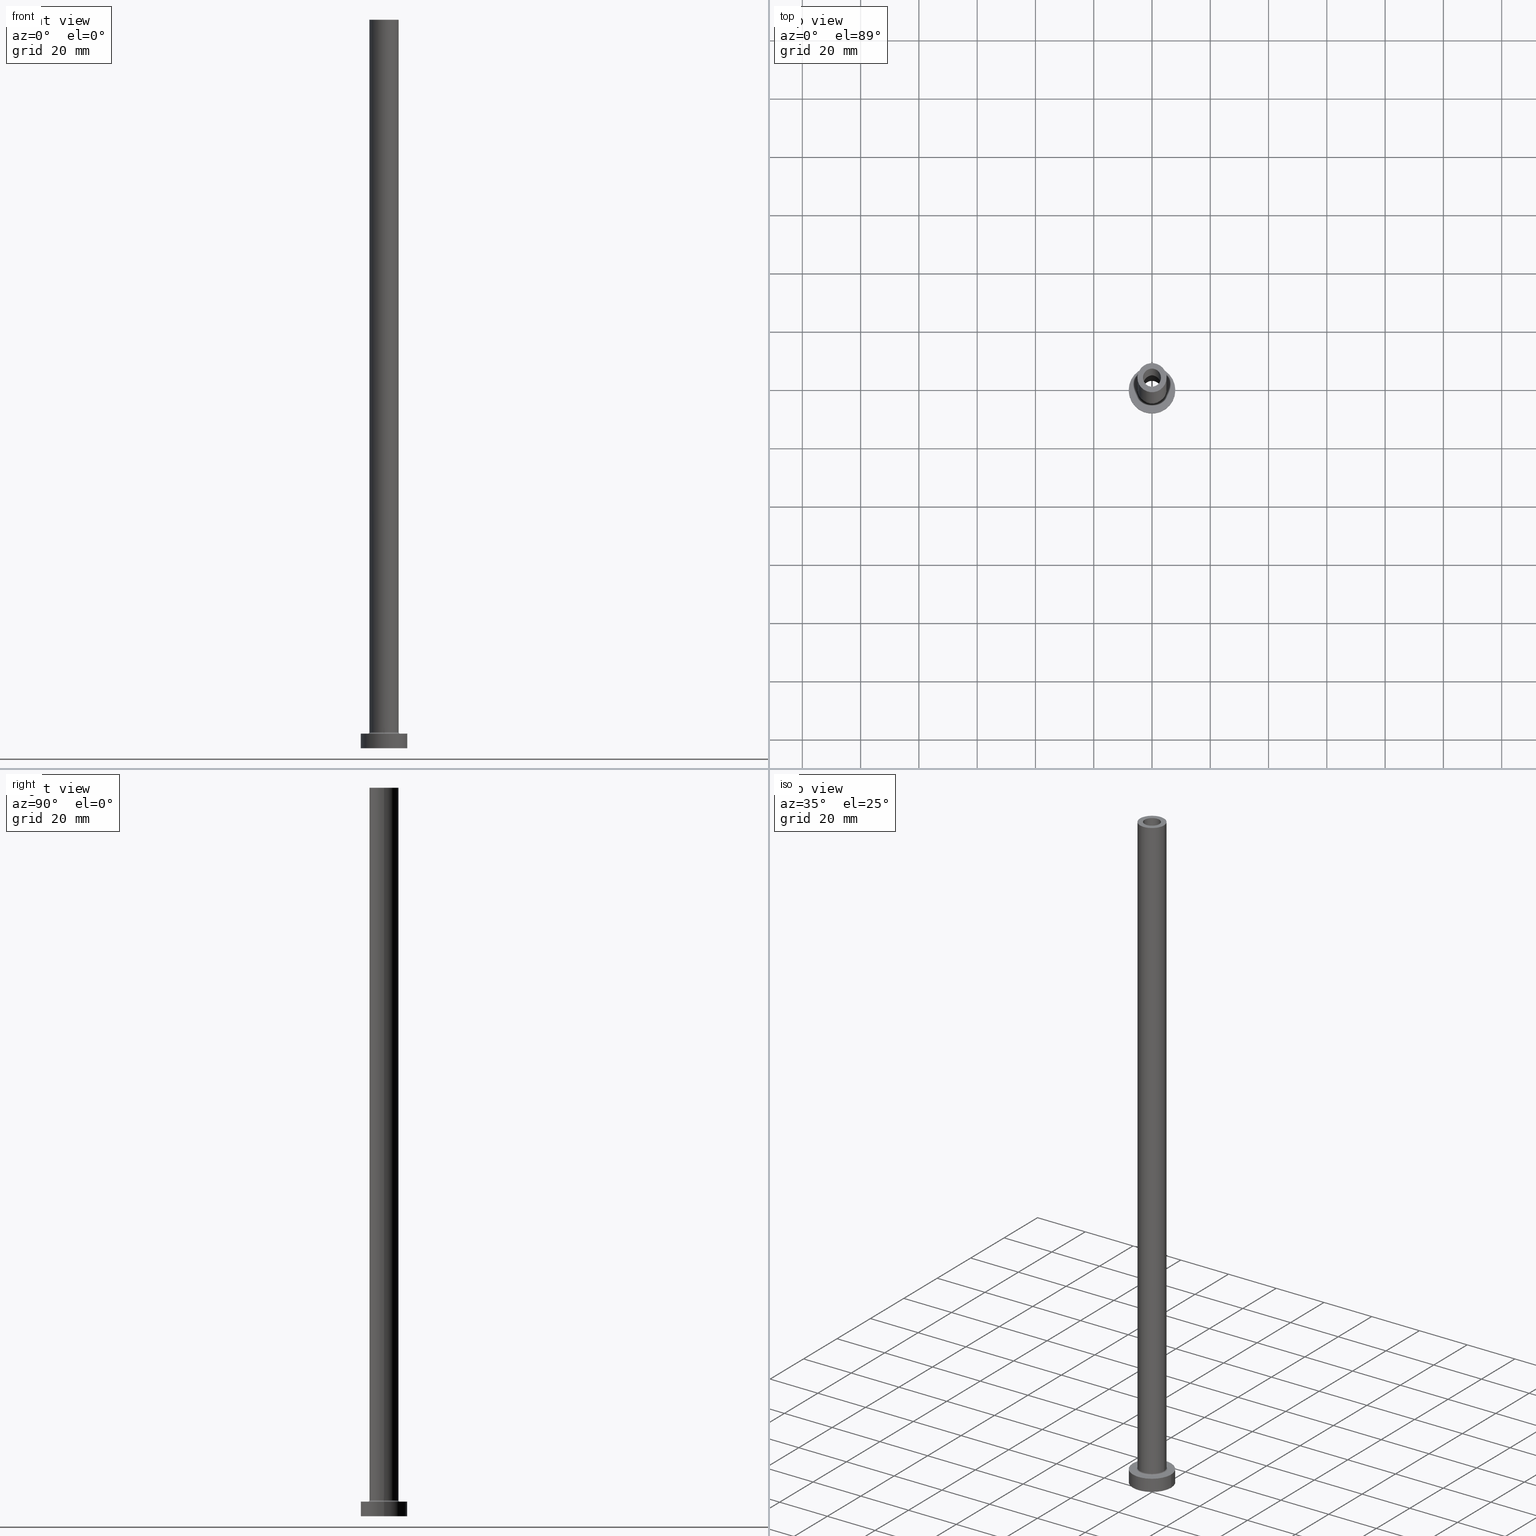
[diagram: canonical four-view strip — front | top / right | iso, engineering-drawing reading convention]
A machine part, canonical four-view strip (front | top / right | iso — engineering-drawing reading convention). The complete STEP part file that produces these views, byte-faithful:
ISO-10303-21;
HEADER;
FILE_DESCRIPTION (( 'STEP AP203' ),
    '1' );
FILE_NAME ('4656.STEP',
    '2023-02-13T14:31:28',
    ( '' ),
    ( '' ),
    'SwSTEP 2.0',
    'SolidWorks 2019',
    '' );
FILE_SCHEMA (( 'CONFIG_CONTROL_DESIGN' ));
ENDSEC;

DATA;
#1 = CIRCLE ( 'NONE', #262, 5.000000000000000000 ) ;
#2 = DIRECTION ( 'NONE',  ( 0.000000000000000000, 0.000000000000000000, 1.000000000000000000 ) ) ;
#3 = AXIS2_PLACEMENT_3D ( 'NONE', #291, #294, #296 ) ;
#4 = LOCAL_TIME ( 15, 31, 28.00000000000000000, #454 ) ;
#5 = ADVANCED_FACE ( 'NONE', ( #66 ), #364, .F. ) ;
#6 = FACE_OUTER_BOUND ( 'NONE', #111, .T. ) ;
#7 = DIRECTION ( 'NONE',  ( 1.224646799147353207E-16, 1.000000000000000000, -0.000000000000000000 ) ) ;
#8 = CARTESIAN_POINT ( 'NONE',  ( -5.000000000000000000, 0.000000000000000000, 250.0000000000000000 ) ) ;
#9 = ADVANCED_FACE ( 'NONE', ( #63 ), #103, .T. ) ;
#10 = AXIS2_PLACEMENT_3D ( 'NONE', #174, #313, #418 ) ;
#11 = LINE ( 'NONE', #120, #310 ) ;
#12 = ORIENTED_EDGE ( 'NONE', *, *, #94, .T. ) ;
#13 = VERTEX_POINT ( 'NONE', #145 ) ;
#14 = FACE_BOUND ( 'NONE', #57, .T. ) ;
#15 = ORIENTED_EDGE ( 'NONE', *, *, #179, .F. ) ;
#16 = DIRECTION ( 'NONE',  ( 1.000000000000000000, 0.000000000000000000, -0.000000000000000000 ) ) ;
#17 = PRODUCT_RELATED_PRODUCT_CATEGORY ( 'detail', '', ( #335 ) ) ;
#18 = AXIS2_PLACEMENT_3D ( 'NONE', #373, #225, #56 ) ;
#19 = ORIENTED_EDGE ( 'NONE', *, *, #295, .T. ) ;
#20 = DIRECTION ( 'NONE',  ( -0.000000000000000000, -0.000000000000000000, -1.000000000000000000 ) ) ;
#21 = EDGE_LOOP ( 'NONE', ( #309, #156 ) ) ;
#22 = CALENDAR_DATE ( 2023, 13, 2 ) ;
#23 = ORIENTED_EDGE ( 'NONE', *, *, #157, .F. ) ;
#24 = EDGE_CURVE ( 'NONE', #344, #161, #428, .T. ) ;
#25 = DIRECTION ( 'NONE',  ( 0.000000000000000000, 0.000000000000000000, 1.000000000000000000 ) ) ;
#26 = DIRECTION ( 'NONE',  ( 1.000000000000000000, 0.000000000000000000, 0.000000000000000000 ) ) ;
#27 = VECTOR ( 'NONE', #320, 1000.000000000000000 ) ;
#28 = LOCAL_TIME ( 15, 31, 28.00000000000000000, #312 ) ;
#29 = CALENDAR_DATE ( 2023, 13, 2 ) ;
#30 = DIRECTION ( 'NONE',  ( 1.000000000000000000, 0.000000000000000000, 0.000000000000000000 ) ) ;
#31 = UNCERTAINTY_MEASURE_WITH_UNIT (LENGTH_MEASURE( 1.000000000000000082E-05 ), #366, 'distance_accuracy_value', 'NONE');
#32 = EDGE_CURVE ( 'NONE', #55, #267, #106, .T. ) ;
#33 = VECTOR ( 'NONE', #243, 1000.000000000000000 ) ;
#34 = DIRECTION ( 'NONE',  ( -0.000000000000000000, -0.000000000000000000, -1.000000000000000000 ) ) ;
#35 = PERSON_AND_ORGANIZATION ( #317, #49 ) ;
#36 = CARTESIAN_POINT ( 'NONE',  ( 0.000000000000000000, 0.000000000000000000, 5.500000000000005329 ) ) ;
#37 = CIRCLE ( 'NONE', #192, 5.500000000000000000 ) ;
#38 = VERTEX_POINT ( 'NONE', #176 ) ;
#39 = LINE ( 'NONE', #182, #95 ) ;
#40 = CC_DESIGN_DATE_AND_TIME_ASSIGNMENT ( #237, #211, ( #86 ) ) ;
#41 = DIRECTION ( 'NONE',  ( 1.000000000000000000, 0.000000000000000000, 0.000000000000000000 ) ) ;
#42 = DIRECTION ( 'NONE',  ( 1.000000000000000000, 0.000000000000000000, -0.000000000000000000 ) ) ;
#43 = FACE_BOUND ( 'NONE', #84, .T. ) ;
#44 = EDGE_CURVE ( 'NONE', #267, #55, #255, .T. ) ;
#45 = VECTOR ( 'NONE', #107, 1000.000000000000000 ) ;
#46 = DIRECTION ( 'NONE',  ( -0.000000000000000000, -0.000000000000000000, -1.000000000000000000 ) ) ;
#47 = EDGE_LOOP ( 'NONE', ( #298, #306, #204, #247 ) ) ;
#48 = AXIS2_PLACEMENT_3D ( 'NONE', #112, #253, #391 ) ;
#49 = ORGANIZATION ( 'NEUR�EN�', 'NEUR�EN�', '' ) ;
#50 = CARTESIAN_POINT ( 'NONE',  ( -8.000000000000000000, 0.000000000000000000, 5.000000000000000000 ) ) ;
#51 = ORIENTED_EDGE ( 'NONE', *, *, #114, .F. ) ;
#52 = ORIENTED_EDGE ( 'NONE', *, *, #307, .T. ) ;
#53 = PRODUCT_DEFINITION ( 'NEZN�M�', '', #327, #447 ) ;
#54 = DIRECTION ( 'NONE',  ( 0.000000000000000000, 0.000000000000000000, 1.000000000000000000 ) ) ;
#55 = VERTEX_POINT ( 'NONE', #388 ) ;
#56 = DIRECTION ( 'NONE',  ( 1.000000000000000000, 0.000000000000000000, 0.000000000000000000 ) ) ;
#57 = EDGE_LOOP ( 'NONE', ( #104, #458 ) ) ;
#58 = DIRECTION ( 'NONE',  ( 0.000000000000000000, 0.000000000000000000, 1.000000000000000000 ) ) ;
#59 = ADVANCED_FACE ( 'NONE', ( #181 ), #421, .F. ) ;
#60 = EDGE_LOOP ( 'NONE', ( #429, #108, #23, #318 ) ) ;
#61 = APPROVAL_ROLE ( '' ) ;
#62 = DIRECTION ( 'NONE',  ( 1.000000000000000000, 0.000000000000000000, 0.000000000000000000 ) ) ;
#63 = FACE_OUTER_BOUND ( 'NONE', #96, .T. ) ;
#64 = AXIS2_PLACEMENT_3D ( 'NONE', #360, #359, #259 ) ;
#65 = DATE_AND_TIME ( #22, #77 ) ;
#66 = FACE_OUTER_BOUND ( 'NONE', #60, .T. ) ;
#67 = DATE_AND_TIME ( #29, #389 ) ;
#68 = AXIS2_PLACEMENT_3D ( 'NONE', #239, #34, #246 ) ;
#69 = DIRECTION ( 'NONE',  ( 0.000000000000000000, 0.000000000000000000, 1.000000000000000000 ) ) ;
#70 = ORIENTED_EDGE ( 'NONE', *, *, #451, .T. ) ;
#71 = APPROVAL_STATUS ( 'not_yet_approved' ) ;
#72 = DIRECTION ( 'NONE',  ( 0.000000000000000000, 0.000000000000000000, 1.000000000000000000 ) ) ;
#73 = LINE ( 'NONE', #430, #209 ) ;
#74 = EDGE_CURVE ( 'NONE', #13, #224, #286, .T. ) ;
#75 = DIRECTION ( 'NONE',  ( -1.000000000000000000, 0.000000000000000000, 0.000000000000000000 ) ) ;
#76 = CARTESIAN_POINT ( 'NONE',  ( 0.000000000000000000, 0.000000000000000000, 250.0000000000000000 ) ) ;
#77 = LOCAL_TIME ( 15, 31, 28.00000000000000000, #135 ) ;
#78 = EDGE_CURVE ( 'NONE', #38, #372, #293, .T. ) ;
#79 = FACE_OUTER_BOUND ( 'NONE', #118, .T. ) ;
#80 = MANIFOLD_SOLID_BREP ( 'Odebrat vysunut�m4', #392 ) ;
#81 = DIRECTION ( 'NONE',  ( -0.000000000000000000, -0.000000000000000000, -1.000000000000000000 ) ) ;
#82 = AXIS2_PLACEMENT_3D ( 'NONE', #212, #69, #26 ) ;
#83 = CARTESIAN_POINT ( 'NONE',  ( 0.000000000000000000, 0.000000000000000000, 5.000000000000000000 ) ) ;
#84 = EDGE_LOOP ( 'NONE', ( #201, #336 ) ) ;
#85 = CIRCLE ( 'NONE', #48, 3.100000000000000089 ) ;
#86 = SECURITY_CLASSIFICATION ( '', '', #105 ) ;
#87 = DIRECTION ( 'NONE',  ( 0.000000000000000000, 0.000000000000000000, -1.000000000000000000 ) ) ;
#88 = ORIENTED_EDGE ( 'NONE', *, *, #358, .F. ) ;
#89 = DIRECTION ( 'NONE',  ( 1.000000000000000000, 0.000000000000000000, 0.000000000000000000 ) ) ;
#90 = ORIENTED_EDGE ( 'NONE', *, *, #307, .F. ) ;
#91 = CIRCLE ( 'NONE', #116, 3.250000000000000444 ) ;
#92 = CARTESIAN_POINT ( 'NONE',  ( 0.000000000000000000, 0.000000000000000000, 214.1923881554251352 ) ) ;
#93 = ORIENTED_EDGE ( 'NONE', *, *, #146, .F. ) ;
#94 = EDGE_CURVE ( 'NONE', #372, #38, #1, .T. ) ;
#95 = VECTOR ( 'NONE', #324, 1000.000000000000000 ) ;
#96 = EDGE_LOOP ( 'NONE', ( #143, #15, #206, #304 ) ) ;
#97 = COORDINATED_UNIVERSAL_TIME_OFFSET ( 1, 0, .AHEAD. ) ;
#98 = CYLINDRICAL_SURFACE ( 'NONE', #68, 5.000000000000000000 ) ;
#99 = APPROVAL_DATE_TIME ( #241, #323 ) ;
#100 = DIRECTION ( 'NONE',  ( 1.000000000000000000, 0.000000000000000000, 0.000000000000000000 ) ) ;
#101 = DIRECTION ( 'NONE',  ( -1.000000000000000000, 0.000000000000000000, 0.000000000000000000 ) ) ;
#102 = ADVANCED_FACE ( 'NONE', ( #214 ), #98, .T. ) ;
#103 = CYLINDRICAL_SURFACE ( 'NONE', #456, 8.000000000000000000 ) ;
#104 = ORIENTED_EDGE ( 'NONE', *, *, #258, .F. ) ;
#105 = SECURITY_CLASSIFICATION_LEVEL ( 'unclassified' ) ;
#106 = CIRCLE ( 'NONE', #198, 5.000000000000000000 ) ;
#107 = DIRECTION ( 'NONE',  ( -0.000000000000000000, -0.000000000000000000, -1.000000000000000000 ) ) ;
#108 = ORIENTED_EDGE ( 'NONE', *, *, #274, .T. ) ;
#109 = DIRECTION ( 'NONE',  ( -0.000000000000000000, -0.000000000000000000, -1.000000000000000000 ) ) ;
#110 = CIRCLE ( 'NONE', #220, 0.5000000000000004441 ) ;
#111 = EDGE_LOOP ( 'NONE', ( #93, #130, #283, #70 ) ) ;
#112 = CARTESIAN_POINT ( 'NONE',  ( 0.000000000000000000, 0.000000000000000000, 250.0000000000000000 ) ) ;
#113 = FACE_OUTER_BOUND ( 'NONE', #125, .T. ) ;
#114 = EDGE_CURVE ( 'NONE', #339, #13, #91, .T. ) ;
#115 = DIRECTION ( 'NONE',  ( -1.000000000000000000, 1.224646799147351482E-16, 0.000000000000000000 ) ) ;
#116 = AXIS2_PLACEMENT_3D ( 'NONE', #379, #172, #100 ) ;
#117 = CARTESIAN_POINT ( 'NONE',  ( 0.000000000000000000, 0.000000000000000000, 250.0000000000000000 ) ) ;
#118 = EDGE_LOOP ( 'NONE', ( #284, #127, #405, #12 ) ) ;
#119 = DIRECTION ( 'NONE',  ( 0.000000000000000000, 0.000000000000000000, 1.000000000000000000 ) ) ;
#120 = CARTESIAN_POINT ( 'NONE',  ( 5.000000000000000000, 6.123233995736766282E-16, 250.0000000000000000 ) ) ;
#121 = CC_DESIGN_PERSON_AND_ORGANIZATION_ASSIGNMENT ( #139, #245, ( #86 ) ) ;
#122 = ORIENTED_EDGE ( 'NONE', *, *, #369, .T. ) ;
#123 = AXIS2_PLACEMENT_3D ( 'NONE', #300, #261, #89 ) ;
#124 = DIRECTION ( 'NONE',  ( 1.000000000000000000, 0.000000000000000000, -0.000000000000000000 ) ) ;
#125 = EDGE_LOOP ( 'NONE', ( #444, #51 ) ) ;
#126 =( NAMED_UNIT ( * ) PLANE_ANGLE_UNIT ( ) SI_UNIT ( $, .RADIAN. ) );
#127 = ORIENTED_EDGE ( 'NONE', *, *, #44, .F. ) ;
#128 = EDGE_CURVE ( 'NONE', #13, #339, #412, .T. ) ;
#129 = CARTESIAN_POINT ( 'NONE',  ( 0.000000000000000000, 0.000000000000000000, 0.000000000000000000 ) ) ;
#130 = ORIENTED_EDGE ( 'NONE', *, *, #114, .T. ) ;
#131 = AXIS2_PLACEMENT_3D ( 'NONE', #362, #183, #187 ) ;
#132 = DATE_TIME_ROLE ( 'creation_date' ) ;
#133 = CIRCLE ( 'NONE', #10, 5.500000000000000000 ) ;
#134 = VERTEX_POINT ( 'NONE', #136 ) ;
#135 = COORDINATED_UNIVERSAL_TIME_OFFSET ( 1, 0, .AHEAD. ) ;
#136 = CARTESIAN_POINT ( 'NONE',  ( 8.000000000000000000, 9.797174393178825657E-16, 0.000000000000000000 ) ) ;
#137 = EDGE_CURVE ( 'NONE', #425, #226, #140, .T. ) ;
#138 = ORIENTED_EDGE ( 'NONE', *, *, #74, .F. ) ;
#139 = PERSON_AND_ORGANIZATION ( #317, #49 ) ;
#140 = LINE ( 'NONE', #424, #27 ) ;
#141 = AXIS2_PLACEMENT_3D ( 'NONE', #256, #2, #42 ) ;
#142 = CC_DESIGN_APPROVAL ( #323, ( #53 ) ) ;
#143 = ORIENTED_EDGE ( 'NONE', *, *, #295, .F. ) ;
#144 = PERSON_AND_ORGANIZATION_ROLE ( 'creator' ) ;
#145 = CARTESIAN_POINT ( 'NONE',  ( -3.250000000000000444, 0.000000000000000000, 205.0000000000000284 ) ) ;
#146 = EDGE_CURVE ( 'NONE', #339, #302, #240, .T. ) ;
#147 = DIRECTION ( 'NONE',  ( 0.000000000000000000, 0.000000000000000000, 1.000000000000000000 ) ) ;
#148 = CARTESIAN_POINT ( 'NONE',  ( -5.500000000000000000, 6.735557395310442023E-16, 5.000000000000002665 ) ) ;
#149 = CIRCLE ( 'NONE', #395, 3.100000000000000089 ) ;
#150 = CARTESIAN_POINT ( 'NONE',  ( 0.000000000000000000, 0.000000000000000000, 5.000000000000000000 ) ) ;
#151 = CARTESIAN_POINT ( 'NONE',  ( 0.000000000000000000, 0.000000000000000000, 250.0000000000000000 ) ) ;
#152 = EDGE_CURVE ( 'NONE', #134, #161, #375, .T. ) ;
#153 = DIRECTION ( 'NONE',  ( -0.000000000000000000, -0.000000000000000000, -1.000000000000000000 ) ) ;
#154 = AXIS2_PLACEMENT_3D ( 'NONE', #442, #340, #124 ) ;
#155 = FACE_OUTER_BOUND ( 'NONE', #47, .T. ) ;
#156 = ORIENTED_EDGE ( 'NONE', *, *, #358, .T. ) ;
#157 = EDGE_CURVE ( 'NONE', #271, #190, #133, .T. ) ;
#158 = PLANE ( 'NONE',  #169 ) ;
#159 = EDGE_LOOP ( 'NONE', ( #374, #230 ) ) ;
#160 = DIRECTION ( 'NONE',  ( 1.000000000000000000, 0.000000000000000000, 0.000000000000000000 ) ) ;
#161 = VERTEX_POINT ( 'NONE', #455 ) ;
#162 = CIRCLE ( 'NONE', #382, 8.000000000000000000 ) ;
#163 = ADVANCED_FACE ( 'NONE', ( #6 ), #257, .F. ) ;
#164 = ORIENTED_EDGE ( 'NONE', *, *, #157, .T. ) ;
#165 = DIRECTION ( 'NONE',  ( 0.000000000000000000, -1.000000000000000000, 0.000000000000000000 ) ) ;
#166 = ORIENTED_EDGE ( 'NONE', *, *, #24, .F. ) ;
#167 = COORDINATED_UNIVERSAL_TIME_OFFSET ( 1, 0, .AHEAD. ) ;
#168 = ORIENTED_EDGE ( 'NONE', *, *, #199, .F. ) ;
#169 = AXIS2_PLACEMENT_3D ( 'NONE', #445, #119, #16 ) ;
#170 = PERSON_AND_ORGANIZATION ( #317, #49 ) ;
#171 = LOCAL_TIME ( 15, 31, 28.00000000000000000, #97 ) ;
#172 = DIRECTION ( 'NONE',  ( 0.000000000000000000, 0.000000000000000000, 1.000000000000000000 ) ) ;
#173 = ADVANCED_FACE ( 'NONE', ( #79 ), #218, .T. ) ;
#174 = CARTESIAN_POINT ( 'NONE',  ( 0.000000000000000000, 0.000000000000000000, 5.000000000000000000 ) ) ;
#175 = APPROVAL_STATUS ( 'not_yet_approved' ) ;
#176 = CARTESIAN_POINT ( 'NONE',  ( 5.000000000000000000, 6.123233995736766282E-16, 5.500000000000005329 ) ) ;
#177 = APPLICATION_PROTOCOL_DEFINITION ( 'international standard', 'config_control_design', 1994, #347 ) ;
#178 = DIRECTION ( 'NONE',  ( 0.000000000000000000, 0.000000000000000000, 1.000000000000000000 ) ) ;
#179 = EDGE_CURVE ( 'NONE', #344, #402, #162, .T. ) ;
#180 = ADVANCED_BREP_SHAPE_REPRESENTATION ( '4656', ( #80, #193 ), #242 ) ;
#181 = FACE_OUTER_BOUND ( 'NONE', #321, .T. ) ;
#182 = CARTESIAN_POINT ( 'NONE',  ( 3.100000000000000089, 3.796405077356793932E-16, 250.0000000000000000 ) ) ;
#183 = DIRECTION ( 'NONE',  ( 0.000000000000000000, 0.000000000000000000, 1.000000000000000000 ) ) ;
#184 = AXIS2_PLACEMENT_3D ( 'NONE', #311, #457, #453 ) ;
#185 = CC_DESIGN_APPROVAL ( #417, ( #86 ) ) ;
#186 = CYLINDRICAL_SURFACE ( 'NONE', #235, 3.100000000000000089 ) ;
#187 = DIRECTION ( 'NONE',  ( 1.000000000000000000, 0.000000000000000000, 0.000000000000000000 ) ) ;
#188 = AXIS2_PLACEMENT_3D ( 'NONE', #357, #384, #380 ) ;
#189 = CARTESIAN_POINT ( 'NONE',  ( -3.250000000000000444, 0.000000000000000000, 0.000000000000000000 ) ) ;
#190 = VERTEX_POINT ( 'NONE', #148 ) ;
#191 = ADVANCED_FACE ( 'NONE', ( #43, #222 ), #326, .F. ) ;
#192 = AXIS2_PLACEMENT_3D ( 'NONE', #328, #330, #393 ) ;
#193 = AXIS2_PLACEMENT_3D ( 'NONE', #354, #25, #459 ) ;
#194 = DIRECTION ( 'NONE',  ( 0.000000000000000000, 0.000000000000000000, -1.000000000000000000 ) ) ;
#195 = ORIENTED_EDGE ( 'NONE', *, *, #137, .F. ) ;
#196 = CARTESIAN_POINT ( 'NONE',  ( 3.250000000000000444, 3.980102097228898231E-16, 205.0000000000000284 ) ) ;
#197 = EDGE_LOOP ( 'NONE', ( #88, #19, #450, #166 ) ) ;
#198 = AXIS2_PLACEMENT_3D ( 'NONE', #322, #215, #62 ) ;
#199 = EDGE_CURVE ( 'NONE', #449, #226, #227, .T. ) ;
#200 = CYLINDRICAL_SURFACE ( 'NONE', #282, 3.250000000000000444 ) ;
#201 = ORIENTED_EDGE ( 'NONE', *, *, #451, .F. ) ;
#202 = CIRCLE ( 'NONE', #18, 3.250000000000000444 ) ;
#203 = CC_DESIGN_SECURITY_CLASSIFICATION ( #86, ( #327 ) ) ;
#204 = ORIENTED_EDGE ( 'NONE', *, *, #387, .T. ) ;
#205 = DIRECTION ( 'NONE',  ( 0.000000000000000000, 0.000000000000000000, 1.000000000000000000 ) ) ;
#206 = ORIENTED_EDGE ( 'NONE', *, *, #24, .T. ) ;
#207 = DIRECTION ( 'NONE',  ( -1.000000000000000000, 0.000000000000000000, 0.000000000000000000 ) ) ;
#208 = CC_DESIGN_PERSON_AND_ORGANIZATION_ASSIGNMENT ( #420, #427, ( #327 ) ) ;
#209 = VECTOR ( 'NONE', #109, 1000.000000000000000 ) ;
#210 = CARTESIAN_POINT ( 'NONE',  ( 0.000000000000000000, 0.000000000000000000, 250.0000000000000000 ) ) ;
#211 = DATE_TIME_ROLE ( 'classification_date' ) ;
#212 = CARTESIAN_POINT ( 'NONE',  ( 0.000000000000000000, 0.000000000000000000, 5.500000000000005329 ) ) ;
#213 = ADVANCED_FACE ( 'NONE', ( #292 ), #186, .F. ) ;
#214 = FACE_OUTER_BOUND ( 'NONE', #287, .T. ) ;
#215 = DIRECTION ( 'NONE',  ( 0.000000000000000000, 0.000000000000000000, 1.000000000000000000 ) ) ;
#216 = AXIS2_PLACEMENT_3D ( 'NONE', #342, #58, #160 ) ;
#217 = CARTESIAN_POINT ( 'NONE',  ( 3.100000000000000089, 3.796405077356793932E-16, 250.0000000000000000 ) ) ;
#218 = CYLINDRICAL_SURFACE ( 'NONE', #436, 5.000000000000000000 ) ;
#219 = CARTESIAN_POINT ( 'NONE',  ( 5.500000000000000000, 0.000000000000000000, 5.000000000000002665 ) ) ;
#220 = AXIS2_PLACEMENT_3D ( 'NONE', #264, #165, #194 ) ;
#221 = PLANE ( 'NONE',  #141 ) ;
#222 = FACE_OUTER_BOUND ( 'NONE', #252, .T. ) ;
#223 = ADVANCED_FACE ( 'NONE', ( #433, #113 ), #221, .F. ) ;
#224 = VERTEX_POINT ( 'NONE', #189 ) ;
#225 = DIRECTION ( 'NONE',  ( -0.000000000000000000, -0.000000000000000000, -1.000000000000000000 ) ) ;
#226 = VERTEX_POINT ( 'NONE', #363 ) ;
#227 = CIRCLE ( 'NONE', #131, 3.100000000000000089 ) ;
#228 = APPROVAL_PERSON_ORGANIZATION ( #350, #417, #345 ) ;
#229 =( NAMED_UNIT ( * ) SI_UNIT ( $, .STERADIAN. ) SOLID_ANGLE_UNIT ( ) );
#230 = ORIENTED_EDGE ( 'NONE', *, *, #199, .T. ) ;
#231 = CARTESIAN_POINT ( 'NONE',  ( 8.000000000000000000, 9.797174393178825657E-16, 5.000000000000000000 ) ) ;
#232 = ORIENTED_EDGE ( 'NONE', *, *, #337, .F. ) ;
#233 = FACE_OUTER_BOUND ( 'NONE', #236, .T. ) ;
#234 = ORIENTED_EDGE ( 'NONE', *, *, #315, .T. ) ;
#235 = AXIS2_PLACEMENT_3D ( 'NONE', #76, #396, #75 ) ;
#236 = EDGE_LOOP ( 'NONE', ( #399, #407, #441, #138 ) ) ;
#237 = DATE_AND_TIME ( #452, #4 ) ;
#238 = CC_DESIGN_DATE_AND_TIME_ASSIGNMENT ( #67, #132, ( #53 ) ) ;
#239 = CARTESIAN_POINT ( 'NONE',  ( 0.000000000000000000, 0.000000000000000000, 250.0000000000000000 ) ) ;
#240 = LINE ( 'NONE', #278, #367 ) ;
#241 = DATE_AND_TIME ( #378, #171 ) ;
#242 =( GEOMETRIC_REPRESENTATION_CONTEXT ( 3 ) GLOBAL_UNCERTAINTY_ASSIGNED_CONTEXT ( ( #31 ) ) GLOBAL_UNIT_ASSIGNED_CONTEXT ( ( #366, #126, #229 ) ) REPRESENTATION_CONTEXT ( 'NONE', 'WORKASPACE' ) );
#243 = DIRECTION ( 'NONE',  ( 0.000000000000000000, 0.000000000000000000, -1.000000000000000000 ) ) ;
#244 = EDGE_CURVE ( 'NONE', #267, #372, #437, .T. ) ;
#245 = PERSON_AND_ORGANIZATION_ROLE ( 'classification_officer' ) ;
#246 = DIRECTION ( 'NONE',  ( -1.000000000000000000, 0.000000000000000000, 0.000000000000000000 ) ) ;
#247 = ORIENTED_EDGE ( 'NONE', *, *, #254, .F. ) ;
#248 = APPROVAL_DATE_TIME ( #279, #289 ) ;
#249 = DIRECTION ( 'NONE',  ( 0.000000000000000000, 0.000000000000000000, 1.000000000000000000 ) ) ;
#250 = AXIS2_PLACEMENT_3D ( 'NONE', #365, #7, #115 ) ;
#251 = CARTESIAN_POINT ( 'NONE',  ( -5.000000000000000000, 0.000000000000000000, 250.0000000000000000 ) ) ;
#252 = EDGE_LOOP ( 'NONE', ( #232, #377 ) ) ;
#253 = DIRECTION ( 'NONE',  ( 0.000000000000000000, 0.000000000000000000, 1.000000000000000000 ) ) ;
#254 = EDGE_CURVE ( 'NONE', #190, #271, #37, .T. ) ;
#255 = CIRCLE ( 'NONE', #434, 5.000000000000000000 ) ;
#256 = CARTESIAN_POINT ( 'NONE',  ( 0.000000000000000000, 0.000000000000000000, 205.0000000000000284 ) ) ;
#257 = CYLINDRICAL_SURFACE ( 'NONE', #64, 3.250000000000000444 ) ;
#258 = EDGE_CURVE ( 'NONE', #425, #299, #149, .T. ) ;
#259 = DIRECTION ( 'NONE',  ( -1.000000000000000000, 0.000000000000000000, 0.000000000000000000 ) ) ;
#260 = ORIENTED_EDGE ( 'NONE', *, *, #244, .F. ) ;
#261 = DIRECTION ( 'NONE',  ( 0.000000000000000000, 0.000000000000000000, 1.000000000000000000 ) ) ;
#262 = AXIS2_PLACEMENT_3D ( 'NONE', #36, #72, #414 ) ;
#263 = PRODUCT_DEFINITION_SHAPE ( 'NONE', 'NONE',  #53 ) ;
#264 = CARTESIAN_POINT ( 'NONE',  ( 5.500000000000000000, 0.000000000000000000, 5.500000000000005329 ) ) ;
#265 = EDGE_LOOP ( 'NONE', ( #164, #368 ) ) ;
#266 = FACE_OUTER_BOUND ( 'NONE', #21, .T. ) ;
#267 = VERTEX_POINT ( 'NONE', #8 ) ;
#268 = PLANE ( 'NONE',  #154 ) ;
#269 = ORIENTED_EDGE ( 'NONE', *, *, #137, .T. ) ;
#270 = DIRECTION ( 'NONE',  ( -1.000000000000000000, 0.000000000000000000, 0.000000000000000000 ) ) ;
#271 = VERTEX_POINT ( 'NONE', #219 ) ;
#272 = CIRCLE ( 'NONE', #356, 8.000000000000000000 ) ;
#273 = CC_DESIGN_APPROVAL ( #289, ( #327 ) ) ;
#274 = EDGE_CURVE ( 'NONE', #372, #190, #361, .T. ) ;
#275 = MECHANICAL_CONTEXT ( 'NONE', #347, 'mechanical' ) ;
#276 = DIRECTION ( 'NONE',  ( 1.000000000000000000, 0.000000000000000000, 0.000000000000000000 ) ) ;
#277 = APPROVAL_ROLE ( '' ) ;
#278 = CARTESIAN_POINT ( 'NONE',  ( 3.250000000000000444, 3.980102097228898231E-16, 214.1923881554251352 ) ) ;
#279 = DATE_AND_TIME ( #285, #28 ) ;
#280 = ORIENTED_EDGE ( 'NONE', *, *, #343, .F. ) ;
#281 = EDGE_CURVE ( 'NONE', #302, #224, #325, .T. ) ;
#282 = AXIS2_PLACEMENT_3D ( 'NONE', #92, #87, #270 ) ;
#283 = ORIENTED_EDGE ( 'NONE', *, *, #74, .T. ) ;
#284 = ORIENTED_EDGE ( 'NONE', *, *, #369, .F. ) ;
#285 = CALENDAR_DATE ( 2023, 13, 2 ) ;
#286 = LINE ( 'NONE', #460, #33 ) ;
#287 = EDGE_LOOP ( 'NONE', ( #333, #122, #411, #260 ) ) ;
#288 = DIRECTION ( 'NONE',  ( 1.000000000000000000, 0.000000000000000000, 0.000000000000000000 ) ) ;
#289 = APPROVAL ( #71, 'NEUR�EN�' ) ;
#290 = AXIS2_PLACEMENT_3D ( 'NONE', #390, #46, #288 ) ;
#291 = CARTESIAN_POINT ( 'NONE',  ( 0.000000000000000000, 0.000000000000000000, 0.000000000000000000 ) ) ;
#292 = FACE_OUTER_BOUND ( 'NONE', #341, .T. ) ;
#293 = CIRCLE ( 'NONE', #82, 5.000000000000000000 ) ;
#294 = DIRECTION ( 'NONE',  ( 0.000000000000000000, 0.000000000000000000, 1.000000000000000000 ) ) ;
#295 = EDGE_CURVE ( 'NONE', #402, #134, #73, .T. ) ;
#296 = DIRECTION ( 'NONE',  ( 1.000000000000000000, 0.000000000000000000, -0.000000000000000000 ) ) ;
#297 = FACE_BOUND ( 'NONE', #265, .T. ) ;
#298 = ORIENTED_EDGE ( 'NONE', *, *, #274, .F. ) ;
#299 = VERTEX_POINT ( 'NONE', #217 ) ;
#300 = CARTESIAN_POINT ( 'NONE',  ( 0.000000000000000000, 0.000000000000000000, 5.500000000000005329 ) ) ;
#301 = CC_DESIGN_PERSON_AND_ORGANIZATION_ASSIGNMENT ( #35, #386, ( #327 ) ) ;
#302 = VERTEX_POINT ( 'NONE', #432 ) ;
#303 = AXIS2_PLACEMENT_3D ( 'NONE', #83, #448, #409 ) ;
#304 = ORIENTED_EDGE ( 'NONE', *, *, #337, .T. ) ;
#305 = CARTESIAN_POINT ( 'NONE',  ( 0.000000000000000000, 0.000000000000000000, 5.000000000000000000 ) ) ;
#306 = ORIENTED_EDGE ( 'NONE', *, *, #78, .F. ) ;
#307 = EDGE_CURVE ( 'NONE', #299, #449, #39, .T. ) ;
#308 = PERSON_AND_ORGANIZATION ( #317, #49 ) ;
#309 = ORIENTED_EDGE ( 'NONE', *, *, #179, .T. ) ;
#310 = VECTOR ( 'NONE', #20, 1000.000000000000000 ) ;
#311 = CARTESIAN_POINT ( 'NONE',  ( 0.000000000000000000, 0.000000000000000000, 205.0000000000000284 ) ) ;
#312 = COORDINATED_UNIVERSAL_TIME_OFFSET ( 1, 0, .AHEAD. ) ;
#313 = DIRECTION ( 'NONE',  ( -0.000000000000000000, -0.000000000000000000, -1.000000000000000000 ) ) ;
#314 = SHAPE_DEFINITION_REPRESENTATION ( #263, #180 ) ;
#315 = EDGE_CURVE ( 'NONE', #299, #425, #85, .T. ) ;
#316 = CARTESIAN_POINT ( 'NONE',  ( 0.000000000000000000, 0.000000000000000000, 5.000000000000000000 ) ) ;
#317 = PERSON ( 'NEUR�EN�', 'NEUR�EN�', 'NEUR�EN�', ('NEUR�EN�'), ('NEUR�EN�'), ('NEUR�EN�') ) ;
#318 = ORIENTED_EDGE ( 'NONE', *, *, #387, .F. ) ;
#319 = PERSON_AND_ORGANIZATION_ROLE ( 'design_owner' ) ;
#320 = DIRECTION ( 'NONE',  ( 0.000000000000000000, 0.000000000000000000, -1.000000000000000000 ) ) ;
#321 = EDGE_LOOP ( 'NONE', ( #90, #234, #269, #168 ) ) ;
#322 = CARTESIAN_POINT ( 'NONE',  ( 0.000000000000000000, 0.000000000000000000, 250.0000000000000000 ) ) ;
#323 = APPROVAL ( #175, 'NEUR�EN�' ) ;
#324 = DIRECTION ( 'NONE',  ( 0.000000000000000000, 0.000000000000000000, -1.000000000000000000 ) ) ;
#325 = CIRCLE ( 'NONE', #290, 3.250000000000000444 ) ;
#326 = PLANE ( 'NONE',  #3 ) ;
#327 = PRODUCT_DEFINITION_FORMATION_WITH_SPECIFIED_SOURCE ( 'LIBOVOLN�', '', #335, .NOT_KNOWN. ) ;
#328 = CARTESIAN_POINT ( 'NONE',  ( 0.000000000000000000, 0.000000000000000000, 5.000000000000000000 ) ) ;
#329 = ADVANCED_FACE ( 'NONE', ( #14, #376 ), #268, .T. ) ;
#330 = DIRECTION ( 'NONE',  ( -0.000000000000000000, -0.000000000000000000, -1.000000000000000000 ) ) ;
#331 = DIRECTION ( 'NONE',  ( 0.000000000000000000, 0.000000000000000000, 1.000000000000000000 ) ) ;
#332 = AXIS2_PLACEMENT_3D ( 'NONE', #385, #178, #30 ) ;
#333 = ORIENTED_EDGE ( 'NONE', *, *, #32, .F. ) ;
#334 = APPROVAL_PERSON_ORGANIZATION ( #413, #323, #277 ) ;
#335 = PRODUCT ( '4656', '4656', '', ( #275 ) ) ;
#336 = ORIENTED_EDGE ( 'NONE', *, *, #281, .F. ) ;
#337 = EDGE_CURVE ( 'NONE', #161, #134, #422, .T. ) ;
#338 = CARTESIAN_POINT ( 'NONE',  ( 3.100000000000000089, 3.796405077356793932E-16, 205.0000000000000284 ) ) ;
#339 = VERTEX_POINT ( 'NONE', #196 ) ;
#340 = DIRECTION ( 'NONE',  ( 0.000000000000000000, 0.000000000000000000, 1.000000000000000000 ) ) ;
#341 = EDGE_LOOP ( 'NONE', ( #370, #52, #280, #195 ) ) ;
#342 = CARTESIAN_POINT ( 'NONE',  ( 0.000000000000000000, 0.000000000000000000, 205.0000000000000284 ) ) ;
#343 = EDGE_CURVE ( 'NONE', #226, #449, #443, .T. ) ;
#344 = VERTEX_POINT ( 'NONE', #50 ) ;
#345 = APPROVAL_ROLE ( '' ) ;
#346 = EDGE_LOOP ( 'NONE', ( #446, #410 ) ) ;
#347 = APPLICATION_CONTEXT ( 'configuration controlled 3d designs of mechanical parts and assemblies' ) ;
#348 = CARTESIAN_POINT ( 'NONE',  ( 0.000000000000000000, 0.000000000000000000, 250.0000000000000000 ) ) ;
#349 = VECTOR ( 'NONE', #81, 1000.000000000000000 ) ;
#350 = PERSON_AND_ORGANIZATION ( #317, #49 ) ;
#351 = DIRECTION ( 'NONE',  ( 0.000000000000000000, 0.000000000000000000, -1.000000000000000000 ) ) ;
#352 = APPLICATION_PROTOCOL_DEFINITION ( 'international standard', 'config_control_design', 1994, #415 ) ;
#353 = DIRECTION ( 'NONE',  ( 0.000000000000000000, 0.000000000000000000, -1.000000000000000000 ) ) ;
#354 = CARTESIAN_POINT ( 'NONE',  ( 0.000000000000000000, 0.000000000000000000, 0.000000000000000000 ) ) ;
#355 = CARTESIAN_POINT ( 'NONE',  ( -8.000000000000000000, 0.000000000000000000, 5.000000000000000000 ) ) ;
#356 = AXIS2_PLACEMENT_3D ( 'NONE', #305, #205, #371 ) ;
#357 = CARTESIAN_POINT ( 'NONE',  ( 0.000000000000000000, 0.000000000000000000, 5.500000000000005329 ) ) ;
#358 = EDGE_CURVE ( 'NONE', #402, #344, #272, .T. ) ;
#359 = DIRECTION ( 'NONE',  ( 0.000000000000000000, 0.000000000000000000, -1.000000000000000000 ) ) ;
#360 = CARTESIAN_POINT ( 'NONE',  ( 0.000000000000000000, 0.000000000000000000, 214.1923881554251352 ) ) ;
#361 = CIRCLE ( 'NONE', #250, 0.5000000000000004441 ) ;
#362 = CARTESIAN_POINT ( 'NONE',  ( 0.000000000000000000, 0.000000000000000000, 205.0000000000000284 ) ) ;
#363 = CARTESIAN_POINT ( 'NONE',  ( -3.100000000000000089, 0.000000000000000000, 205.0000000000000284 ) ) ;
#364 = TOROIDAL_SURFACE ( 'NONE', #188, 5.500000000000000000, 0.5000000000000000000 ) ;
#365 = CARTESIAN_POINT ( 'NONE',  ( -5.500000000000000000, 6.735557395310442023E-16, 5.500000000000005329 ) ) ;
#366 =( LENGTH_UNIT ( ) NAMED_UNIT ( * ) SI_UNIT ( .MILLI., .METRE. ) );
#367 = VECTOR ( 'NONE', #351, 1000.000000000000000 ) ;
#368 = ORIENTED_EDGE ( 'NONE', *, *, #254, .T. ) ;
#369 = EDGE_CURVE ( 'NONE', #55, #38, #11, .T. ) ;
#370 = ORIENTED_EDGE ( 'NONE', *, *, #258, .T. ) ;
#371 = DIRECTION ( 'NONE',  ( 1.000000000000000000, 0.000000000000000000, 0.000000000000000000 ) ) ;
#372 = VERTEX_POINT ( 'NONE', #440 ) ;
#373 = CARTESIAN_POINT ( 'NONE',  ( 0.000000000000000000, 0.000000000000000000, 0.000000000000000000 ) ) ;
#374 = ORIENTED_EDGE ( 'NONE', *, *, #343, .T. ) ;
#375 = CIRCLE ( 'NONE', #332, 8.000000000000000000 ) ;
#376 = FACE_OUTER_BOUND ( 'NONE', #346, .T. ) ;
#377 = ORIENTED_EDGE ( 'NONE', *, *, #152, .F. ) ;
#378 = CALENDAR_DATE ( 2023, 13, 2 ) ;
#379 = CARTESIAN_POINT ( 'NONE',  ( 0.000000000000000000, 0.000000000000000000, 205.0000000000000284 ) ) ;
#380 = DIRECTION ( 'NONE',  ( 1.000000000000000000, 0.000000000000000000, 0.000000000000000000 ) ) ;
#381 = CC_DESIGN_PERSON_AND_ORGANIZATION_ASSIGNMENT ( #423, #319, ( #335 ) ) ;
#382 = AXIS2_PLACEMENT_3D ( 'NONE', #150, #147, #41 ) ;
#383 = APPROVAL_STATUS ( 'not_yet_approved' ) ;
#384 = DIRECTION ( 'NONE',  ( 0.000000000000000000, 0.000000000000000000, 1.000000000000000000 ) ) ;
#385 = CARTESIAN_POINT ( 'NONE',  ( 0.000000000000000000, 0.000000000000000000, 0.000000000000000000 ) ) ;
#386 = PERSON_AND_ORGANIZATION_ROLE ( 'design_supplier' ) ;
#387 = EDGE_CURVE ( 'NONE', #38, #271, #110, .T. ) ;
#388 = CARTESIAN_POINT ( 'NONE',  ( 5.000000000000000000, 6.123233995736766282E-16, 250.0000000000000000 ) ) ;
#389 = LOCAL_TIME ( 15, 31, 28.00000000000000000, #167 ) ;
#390 = CARTESIAN_POINT ( 'NONE',  ( 0.000000000000000000, 0.000000000000000000, 0.000000000000000000 ) ) ;
#391 = DIRECTION ( 'NONE',  ( 1.000000000000000000, 0.000000000000000000, 0.000000000000000000 ) ) ;
#392 = CLOSED_SHELL ( 'NONE', ( #213, #438, #5, #102, #426, #9, #394, #191, #173, #329, #401, #163, #223, #59 ) ) ;
#393 = DIRECTION ( 'NONE',  ( 1.000000000000000000, 0.000000000000000000, 0.000000000000000000 ) ) ;
#394 = ADVANCED_FACE ( 'NONE', ( #297, #266 ), #158, .T. ) ;
#395 = AXIS2_PLACEMENT_3D ( 'NONE', #117, #331, #398 ) ;
#396 = DIRECTION ( 'NONE',  ( 0.000000000000000000, 0.000000000000000000, -1.000000000000000000 ) ) ;
#397 = APPROVAL_PERSON_ORGANIZATION ( #170, #289, #61 ) ;
#398 = DIRECTION ( 'NONE',  ( 1.000000000000000000, 0.000000000000000000, 0.000000000000000000 ) ) ;
#399 = ORIENTED_EDGE ( 'NONE', *, *, #128, .T. ) ;
#400 = FACE_OUTER_BOUND ( 'NONE', #197, .T. ) ;
#401 = ADVANCED_FACE ( 'NONE', ( #155 ), #431, .F. ) ;
#402 = VERTEX_POINT ( 'NONE', #231 ) ;
#403 = CYLINDRICAL_SURFACE ( 'NONE', #303, 8.000000000000000000 ) ;
#404 = AXIS2_PLACEMENT_3D ( 'NONE', #129, #54, #406 ) ;
#405 = ORIENTED_EDGE ( 'NONE', *, *, #244, .T. ) ;
#406 = DIRECTION ( 'NONE',  ( 1.000000000000000000, 0.000000000000000000, 0.000000000000000000 ) ) ;
#407 = ORIENTED_EDGE ( 'NONE', *, *, #146, .T. ) ;
#408 = CC_DESIGN_PERSON_AND_ORGANIZATION_ASSIGNMENT ( #308, #144, ( #53 ) ) ;
#409 = DIRECTION ( 'NONE',  ( -1.000000000000000000, 0.000000000000000000, 0.000000000000000000 ) ) ;
#410 = ORIENTED_EDGE ( 'NONE', *, *, #32, .T. ) ;
#411 = ORIENTED_EDGE ( 'NONE', *, *, #78, .T. ) ;
#412 = CIRCLE ( 'NONE', #184, 3.250000000000000444 ) ;
#413 = PERSON_AND_ORGANIZATION ( #317, #49 ) ;
#414 = DIRECTION ( 'NONE',  ( 1.000000000000000000, 0.000000000000000000, 0.000000000000000000 ) ) ;
#415 = APPLICATION_CONTEXT ( 'configuration controlled 3d designs of mechanical parts and assemblies' ) ;
#416 = APPROVAL_DATE_TIME ( #65, #417 ) ;
#417 = APPROVAL ( #383, 'NEUR�EN�' ) ;
#418 = DIRECTION ( 'NONE',  ( 1.000000000000000000, 0.000000000000000000, 0.000000000000000000 ) ) ;
#419 = AXIS2_PLACEMENT_3D ( 'NONE', #348, #353, #101 ) ;
#420 = PERSON_AND_ORGANIZATION ( #317, #49 ) ;
#421 = CYLINDRICAL_SURFACE ( 'NONE', #419, 3.100000000000000089 ) ;
#422 = CIRCLE ( 'NONE', #404, 8.000000000000000000 ) ;
#423 = PERSON_AND_ORGANIZATION ( #317, #49 ) ;
#424 = CARTESIAN_POINT ( 'NONE',  ( -3.100000000000000089, 0.000000000000000000, 250.0000000000000000 ) ) ;
#425 = VERTEX_POINT ( 'NONE', #439 ) ;
#426 = ADVANCED_FACE ( 'NONE', ( #400 ), #403, .T. ) ;
#427 = PERSON_AND_ORGANIZATION_ROLE ( 'creator' ) ;
#428 = LINE ( 'NONE', #355, #45 ) ;
#429 = ORIENTED_EDGE ( 'NONE', *, *, #94, .F. ) ;
#430 = CARTESIAN_POINT ( 'NONE',  ( 8.000000000000000000, 9.797174393178825657E-16, 5.000000000000000000 ) ) ;
#431 = TOROIDAL_SURFACE ( 'NONE', #123, 5.500000000000000000, 0.5000000000000000000 ) ;
#432 = CARTESIAN_POINT ( 'NONE',  ( 3.250000000000000444, 3.980102097228898231E-16, 0.000000000000000000 ) ) ;
#433 = FACE_BOUND ( 'NONE', #159, .T. ) ;
#434 = AXIS2_PLACEMENT_3D ( 'NONE', #210, #249, #276 ) ;
#435 = DIRECTION ( 'NONE',  ( -1.000000000000000000, 0.000000000000000000, 0.000000000000000000 ) ) ;
#436 = AXIS2_PLACEMENT_3D ( 'NONE', #151, #153, #435 ) ;
#437 = LINE ( 'NONE', #251, #349 ) ;
#438 = ADVANCED_FACE ( 'NONE', ( #233 ), #200, .F. ) ;
#439 = CARTESIAN_POINT ( 'NONE',  ( -3.100000000000000089, 0.000000000000000000, 250.0000000000000000 ) ) ;
#440 = CARTESIAN_POINT ( 'NONE',  ( -5.000000000000000000, 0.000000000000000000, 5.500000000000005329 ) ) ;
#441 = ORIENTED_EDGE ( 'NONE', *, *, #281, .T. ) ;
#442 = CARTESIAN_POINT ( 'NONE',  ( 0.000000000000000000, 0.000000000000000000, 250.0000000000000000 ) ) ;
#443 = CIRCLE ( 'NONE', #216, 3.100000000000000089 ) ;
#444 = ORIENTED_EDGE ( 'NONE', *, *, #128, .F. ) ;
#445 = CARTESIAN_POINT ( 'NONE',  ( 0.000000000000000000, 0.000000000000000000, 5.000000000000000000 ) ) ;
#446 = ORIENTED_EDGE ( 'NONE', *, *, #44, .T. ) ;
#447 = DESIGN_CONTEXT ( 'detailed design', #415, 'design' ) ;
#448 = DIRECTION ( 'NONE',  ( -0.000000000000000000, -0.000000000000000000, -1.000000000000000000 ) ) ;
#449 = VERTEX_POINT ( 'NONE', #338 ) ;
#450 = ORIENTED_EDGE ( 'NONE', *, *, #152, .T. ) ;
#451 = EDGE_CURVE ( 'NONE', #224, #302, #202, .T. ) ;
#452 = CALENDAR_DATE ( 2023, 13, 2 ) ;
#453 = DIRECTION ( 'NONE',  ( 1.000000000000000000, 0.000000000000000000, 0.000000000000000000 ) ) ;
#454 = COORDINATED_UNIVERSAL_TIME_OFFSET ( 1, 0, .AHEAD. ) ;
#455 = CARTESIAN_POINT ( 'NONE',  ( -8.000000000000000000, 0.000000000000000000, 0.000000000000000000 ) ) ;
#456 = AXIS2_PLACEMENT_3D ( 'NONE', #316, #461, #207 ) ;
#457 = DIRECTION ( 'NONE',  ( 0.000000000000000000, 0.000000000000000000, 1.000000000000000000 ) ) ;
#458 = ORIENTED_EDGE ( 'NONE', *, *, #315, .F. ) ;
#459 = DIRECTION ( 'NONE',  ( 1.000000000000000000, 0.000000000000000000, 0.000000000000000000 ) ) ;
#460 = CARTESIAN_POINT ( 'NONE',  ( -3.250000000000000444, 0.000000000000000000, 214.1923881554251352 ) ) ;
#461 = DIRECTION ( 'NONE',  ( -0.000000000000000000, -0.000000000000000000, -1.000000000000000000 ) ) ;
ENDSEC;
END-ISO-10303-21;
